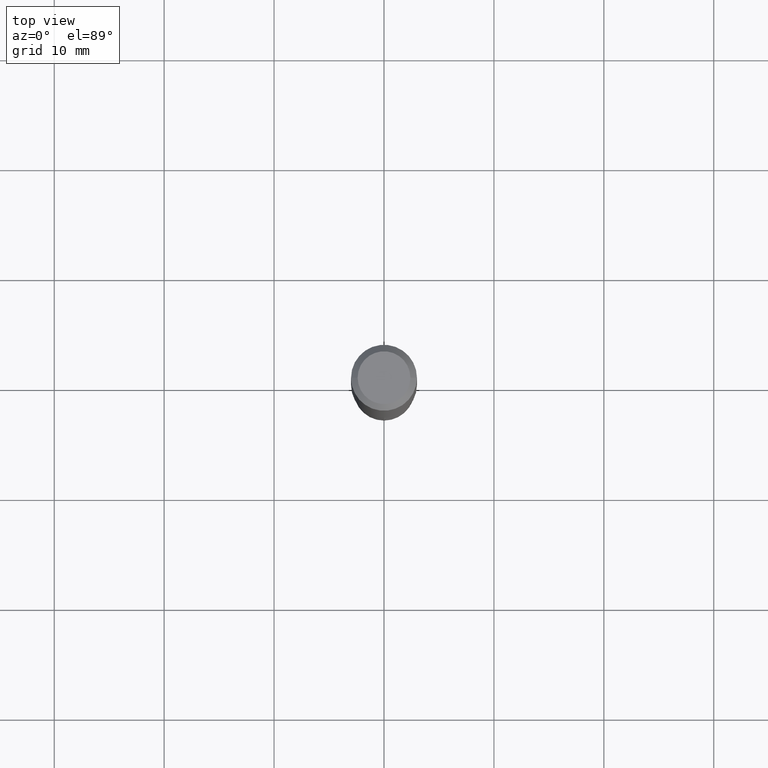
[diagram: clean part render]
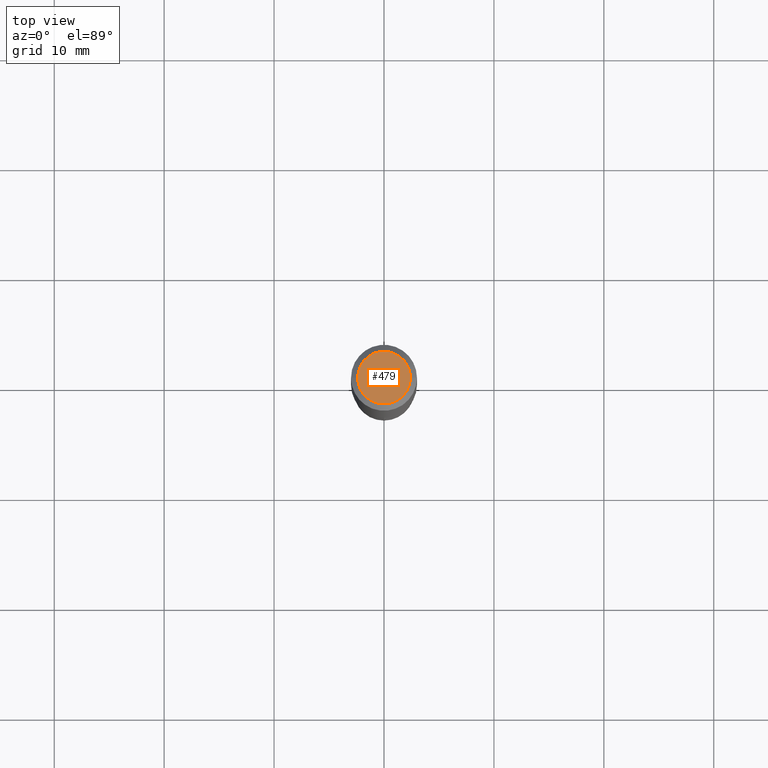
[diagram: same view with one face highlighted and labeled with its STEP entity id]
A machine part, top view. The second image highlights one B-rep face of the part: STEP entity #479.
In plain terms, the highlighted planar face has unit normal (0, -0, -1).
Its self-contained STEP definition (entity closure, byte-faithful):
#15 = PLANE ( 'NONE',  #110 ) ;
#24 = CARTESIAN_POINT ( 'NONE',  ( 0.09447999999999998066, -7.704367267948738690E-16, -2.700101262759583929E-17 ) ) ;
#61 = VERTEX_POINT ( 'NONE', #226 ) ;
#62 = DIRECTION ( 'NONE',  ( 1.000000000000000000, -6.982962677686267499E-15, 4.875432709231658792E-29 ) ) ;
#79 = CARTESIAN_POINT ( 'NONE',  ( 6.603013411620882309E-46, -9.427353171913646324E-32, -2.700101262760083747E-17 ) ) ;
#93 = AXIS2_PLACEMENT_3D ( 'NONE', #79, #384, #460 ) ;
#98 = ORIENTED_EDGE ( 'NONE', *, *, #112, .T. ) ;
#110 = AXIS2_PLACEMENT_3D ( 'NONE', #170, #325, #133 ) ;
#112 = EDGE_CURVE ( 'NONE', #122, #61, #440, .T. ) ;
#120 = EDGE_LOOP ( 'NONE', ( #169, #98 ) ) ;
#122 = VERTEX_POINT ( 'NONE', #24 ) ;
#133 = DIRECTION ( 'NONE',  ( -1.000000000000000000, 6.982962677686265922E-15, -4.876176775795935793E-29 ) ) ;
#169 = ORIENTED_EDGE ( 'NONE', *, *, #208, .T. ) ;
#170 = CARTESIAN_POINT ( 'NONE',  ( 3.301506705810441154E-46, -4.713676585956823162E-32, -1.350050631380041873E-17 ) ) ;
#208 = EDGE_CURVE ( 'NONE', #61, #122, #263, .T. ) ;
#226 = CARTESIAN_POINT ( 'NONE',  ( -0.09447999999999998066, 7.009847083995354710E-16, -2.700101262760559836E-17 ) ) ;
#229 = AXIS2_PLACEMENT_3D ( 'NONE', #443, #407, #62 ) ;
#263 = CIRCLE ( 'NONE', #93, 0.09447999999999998066 ) ;
#325 = DIRECTION ( 'NONE',  ( 2.438088387897960049E-29, -3.491481338843145188E-15, -1.000000000000000000 ) ) ;
#359 = FACE_OUTER_BOUND ( 'NONE', #120, .T. ) ;
#384 = DIRECTION ( 'NONE',  ( -2.445468806185136597E-29, 3.491481338843145583E-15, 1.000000000000000000 ) ) ;
#407 = DIRECTION ( 'NONE',  ( -2.445468806185136597E-29, 3.491481338843145583E-15, 1.000000000000000000 ) ) ;
#440 = CIRCLE ( 'NONE', #229, 0.09447999999999998066 ) ;
#443 = CARTESIAN_POINT ( 'NONE',  ( 6.603013411620882309E-46, -9.427353171913646324E-32, -2.700101262760083747E-17 ) ) ;
#460 = DIRECTION ( 'NONE',  ( 1.000000000000000000, -6.982962677686267499E-15, 4.875432709231658792E-29 ) ) ;
#479 = ADVANCED_FACE ( 'NONE', ( #359 ), #15, .F. ) ;